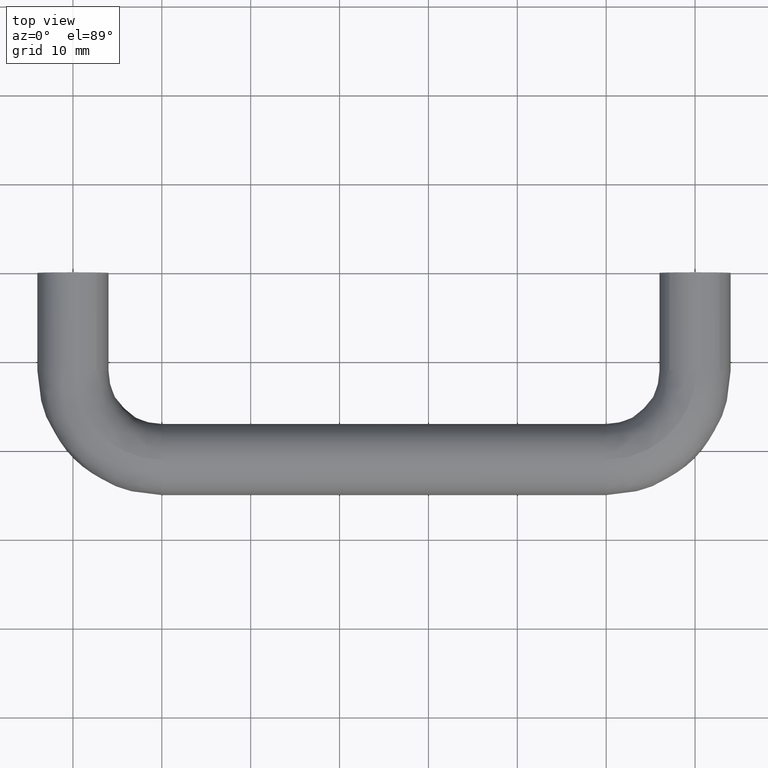
[diagram: clean part render]
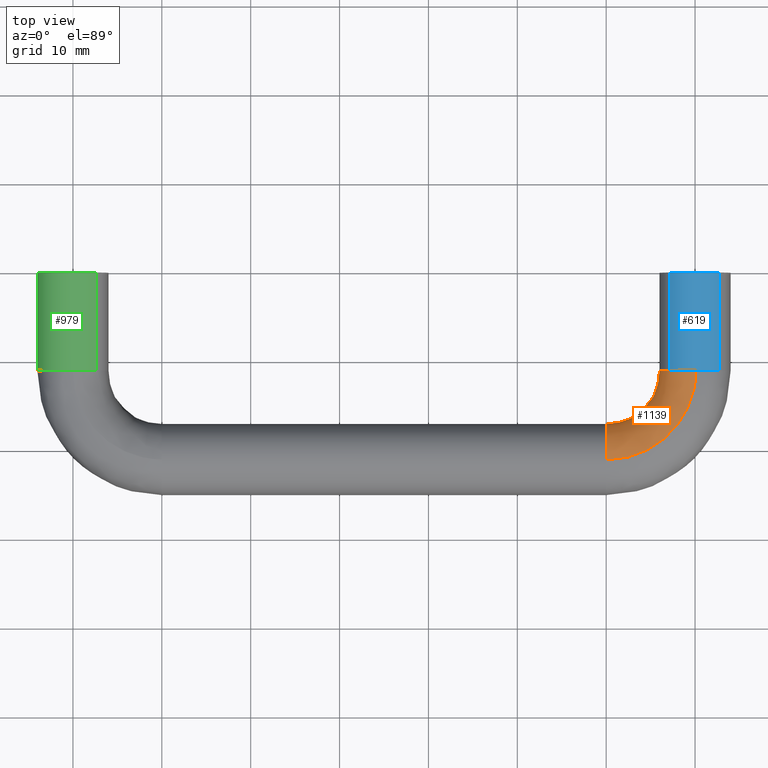
[diagram: same view with three faces highlighted in distinct colors, each labeled with its STEP entity id]
A machine part, top view with three faces highlighted in distinct colors.
Their STEP definitions:

[orange] entity #1139 — the highlighted face is a freeform B-spline surface patch.
#469=CARTESIAN_POINT('',(69.899479617930368,-11.000000000273801,-3.998736757125752));
#470=VERTEX_POINT('',#469);
#486=CARTESIAN_POINT('',(66.0,-11.0,0.0));
#487=VERTEX_POINT('',#486);
#488=CARTESIAN_POINT('',(69.899479617930368,-11.000000000273797,-3.998736757125752));
#489=CARTESIAN_POINT('',(65.999999999999986,-11.0,-3.900711504144390));
#490=CARTESIAN_POINT('',(66.0,-11.0,0.0));
#498=(BOUNDED_CURVE()B_SPLINE_CURVE(2,(#488,#489,#490),.UNSPECIFIED.,.F.,.U.)B_SPLINE_CURVE_WITH_KNOTS((3,3),(0.254420108256121,0.500000000000000),.UNSPECIFIED.)CURVE()GEOMETRIC_REPRESENTATION_ITEM()RATIONAL_B_SPLINE_CURVE((0.989826157622969,0.712285260125105,1.0))REPRESENTATION_ITEM(''));
#499=EDGE_CURVE('',#470,#487,#498,.T.);
#501=CARTESIAN_POINT('',(67.098502167182076,-11.000000000000011,2.753417935249319));
#502=VERTEX_POINT('',#501);
#503=CARTESIAN_POINT('',(66.0,-11.0,0.0));
#504=CARTESIAN_POINT('',(66.0,-11.0,1.595837596578552));
#505=CARTESIAN_POINT('',(67.098502167182076,-11.000000000000009,2.753417935249319));
#513=(BOUNDED_CURVE()B_SPLINE_CURVE(2,(#503,#504,#505),.UNSPECIFIED.,.F.,.U.)B_SPLINE_CURVE_WITH_KNOTS((3,3),(0.500000000000000,0.621049488427203),.UNSPECIFIED.)CURVE()GEOMETRIC_REPRESENTATION_ITEM()RATIONAL_B_SPLINE_CURVE((1.0,0.858181702795339,0.853699664200608))REPRESENTATION_ITEM(''));
#514=EDGE_CURVE('',#487,#502,#513,.T.);
#586=CARTESIAN_POINT('',(70.100520384564703,-11.000000000624340,3.998736757063030));
#587=VERTEX_POINT('',#586);
#588=CARTESIAN_POINT('',(67.098502167182076,-11.000000000000011,2.753417935249319));
#589=CARTESIAN_POINT('',(68.281463775938448,-11.0,4.000000000000001));
#590=CARTESIAN_POINT('',(70.0,-11.0,4.0));
#591=CARTESIAN_POINT('',(70.050268131286202,-11.000000000000004,4.000000000000001));
#592=CARTESIAN_POINT('',(70.100520384564703,-11.000000000624341,3.998736757063030));
#600=(BOUNDED_CURVE()B_SPLINE_CURVE(2,(#588,#589,#590,#591,#592),.UNSPECIFIED.,.F.,.U.)B_SPLINE_CURVE_WITH_KNOTS((3,2,3),(0.621049488427202,0.750000000000000,0.754420108474482),.UNSPECIFIED.)CURVE()GEOMETRIC_REPRESENTATION_ITEM()RATIONAL_B_SPLINE_CURVE((0.853699664200608,0.848925078391208,1.0,0.994821520805617,0.989826157129410))REPRESENTATION_ITEM(''));
#601=EDGE_CURVE('',#502,#587,#600,.T.);
#642=CARTESIAN_POINT('',(59.999995410626042,-18.085144373023830,-2.739273019229506));
#643=VERTEX_POINT('',#642);
#644=CARTESIAN_POINT('',(60.0,-17.0,0.0));
#645=VERTEX_POINT('',#644);
#646=CARTESIAN_POINT('',(59.999995410626028,-18.085144373023823,-2.739273019229505));
#647=CARTESIAN_POINT('',(59.999998084996584,-17.000000000000025,-1.584572790525597));
#648=CARTESIAN_POINT('',(60.0,-17.0,0.0));
#656=(BOUNDED_CURVE()B_SPLINE_CURVE(2,(#646,#647,#648),.UNSPECIFIED.,.F.,.U.)B_SPLINE_CURVE_WITH_KNOTS((3,3),(0.379684538877428,0.500000000000000),.UNSPECIFIED.)CURVE()GEOMETRIC_REPRESENTATION_ITEM()RATIONAL_B_SPLINE_CURVE((0.853759071032117,0.859041669275140,1.0))REPRESENTATION_ITEM(''));
#657=EDGE_CURVE('',#643,#645,#656,.T.);
#750=CARTESIAN_POINT('',(60.000000000247098,-21.100520383177319,3.998736757097906));
#751=VERTEX_POINT('',#750);
#765=CARTESIAN_POINT('',(60.0,-17.0,0.0));
#766=CARTESIAN_POINT('',(60.0,-17.000000000000004,4.000000000000000));
#767=CARTESIAN_POINT('',(60.0,-21.0,4.0));
#768=CARTESIAN_POINT('',(60.000000000000007,-21.050268129898161,4.0));
#769=CARTESIAN_POINT('',(60.000000000247098,-21.100520383177322,3.998736757097906));
#777=(BOUNDED_CURVE()B_SPLINE_CURVE(2,(#765,#766,#767,#768,#769),.UNSPECIFIED.,.F.,.U.)B_SPLINE_CURVE_WITH_KNOTS((3,2,3),(0.500000000000000,0.750000000000000,0.754420108353064),.UNSPECIFIED.)CURVE()GEOMETRIC_REPRESENTATION_ITEM()RATIONAL_B_SPLINE_CURVE((1.0,0.707106781186548,1.0,0.994821520947867,0.989826157403851))REPRESENTATION_ITEM(''));
#778=EDGE_CURVE('',#645,#751,#777,.T.);
#801=CARTESIAN_POINT('',(59.999990571734777,-20.899485182958191,-3.998736897012089));
#802=VERTEX_POINT('',#801);
#803=CARTESIAN_POINT('',(59.999990571734791,-20.899485182958191,-3.998736897012088));
#804=CARTESIAN_POINT('',(59.999992590856003,-19.229287516682106,-3.956753736536658));
#805=CARTESIAN_POINT('',(59.999995410626028,-18.085144373023823,-2.739273019229505));
#813=(BOUNDED_CURVE()B_SPLINE_CURVE(2,(#803,#804,#805),.UNSPECIFIED.,.F.,.U.)B_SPLINE_CURVE_WITH_KNOTS((3,3),(0.254419864726559,0.379684538877428),.UNSPECIFIED.)CURVE()GEOMETRIC_REPRESENTATION_ITEM()RATIONAL_B_SPLINE_CURVE((0.989826708070981,0.848259171506251,0.853759071032117))REPRESENTATION_ITEM(''));
#814=EDGE_CURVE('',#802,#643,#813,.T.);
#1082=CARTESIAN_POINT('',(59.295740786836014,-21.075938216528144,3.998736757133199));
#1083=CARTESIAN_POINT('',(70.881652070292617,-21.885737223720390,3.998736757133198));
#1084=CARTESIAN_POINT('',(70.076201847765233,-10.299522801433548,3.998736757133199));
#1085=CARTESIAN_POINT('',(59.574552877281384,-17.086933394386470,4.099257138906548));
#1086=CARTESIAN_POINT('',(66.573669860748879,-17.576137725903084,4.099257138906547));
#1087=CARTESIAN_POINT('',(66.087092655563566,-10.576837614489703,4.099257138906549));
#1088=CARTESIAN_POINT('',(59.581561665175386,-16.986657654328774,0.100520381773351));
#1089=CARTESIAN_POINT('',(66.465375656184477,-17.467802865890601,0.100520381773351));
#1090=CARTESIAN_POINT('',(65.986814291847736,-10.583808763773309,0.100520381773351));
#1091=CARTESIAN_POINT('',(59.588570453069366,-16.886381914271077,-3.898216375359846));
#1092=CARTESIAN_POINT('',(66.357081451620076,-17.359468005878096,-3.898216375359846));
#1093=CARTESIAN_POINT('',(65.886535928131877,-10.590779913056911,-3.898216375359846));
#1094=CARTESIAN_POINT('',(59.309758362623967,-20.875386736412768,-3.998736757133199));
#1095=CARTESIAN_POINT('',(70.665063661163856,-21.669067503695398,-3.998736757133198));
#1096=CARTESIAN_POINT('',(69.875645120333544,-10.313465100000757,-3.998736757133199));
#1104=(BOUNDED_SURFACE()B_SPLINE_SURFACE(2,2,((#1082,#1085,#1088,#1091,#1094),(#1083,#1086,#1089,#1092,#1095),(#1084,#1087,#1090,#1093,#1096)),.UNSPECIFIED.,.F.,.F.,.U.)B_SPLINE_SURFACE_WITH_KNOTS((3,3),(3,2,3),(0.0,18.406899486128331),(0.0,6.627416997969523,13.254833995939050),.UNSPECIFIED.)GEOMETRIC_REPRESENTATION_ITEM()RATIONAL_B_SPLINE_SURFACE(((0.916719569237488,0.648218623854239,0.916719569237488,0.648218623854239,0.916719569237488),(0.603246723527007,0.426559848934513,0.603246723527007,0.426559848934513,0.603246723527007),(0.921825358328560,0.651828961943844,0.921825358328560,0.651828961943844,0.921825358328560)))REPRESENTATION_ITEM('')SURFACE());
#1105=ORIENTED_EDGE('',*,*,#601,.F.);
#1106=ORIENTED_EDGE('',*,*,#514,.F.);
#1107=ORIENTED_EDGE('',*,*,#499,.F.);
#1108=CARTESIAN_POINT('',(59.999990571734777,-20.899485182958184,-3.998736897012089));
#1109=CARTESIAN_POINT('',(69.899479617528286,-20.899491828722166,-3.998736827068921));
#1110=CARTESIAN_POINT('',(69.899479617930368,-11.000000000273795,-3.998736757125752));
#1118=(BOUNDED_CURVE()B_SPLINE_CURVE(2,(#1108,#1109,#1110),.UNSPECIFIED.,.F.,.U.)B_SPLINE_CURVE_WITH_KNOTS((3,3),(-1.733068856363078,-0.253787686499701),.UNSPECIFIED.)CURVE()GEOMETRIC_REPRESENTATION_ITEM()RATIONAL_B_SPLINE_CURVE((0.889551518137046,0.630646669306107,0.894193516980253))REPRESENTATION_ITEM(''));
#1119=EDGE_CURVE('',#802,#470,#1118,.T.);
#1120=ORIENTED_EDGE('',*,*,#1119,.F.);
#1121=ORIENTED_EDGE('',*,*,#814,.T.);
#1122=ORIENTED_EDGE('',*,*,#657,.T.);
#1123=ORIENTED_EDGE('',*,*,#778,.T.);
#1124=CARTESIAN_POINT('',(60.000000000247098,-21.100520383177319,3.998736757097906));
#1125=CARTESIAN_POINT('',(70.100520380524642,-21.100520381279154,3.998736757133199));
#1126=CARTESIAN_POINT('',(70.100520384564703,-11.000000000624340,3.998736757063030));
#1134=(BOUNDED_CURVE()B_SPLINE_CURVE(2,(#1124,#1125,#1126),.UNSPECIFIED.,.F.,.U.)B_SPLINE_CURVE_WITH_KNOTS((3,3),(-1.733067862682674,-0.253787686571340),.UNSPECIFIED.)CURVE()GEOMETRIC_REPRESENTATION_ITEM()RATIONAL_B_SPLINE_CURVE((0.889551170307972,0.630646846351479,0.894193516954727))REPRESENTATION_ITEM(''));
#1135=EDGE_CURVE('',#751,#587,#1134,.T.);
#1136=ORIENTED_EDGE('',*,*,#1135,.T.);
#1137=EDGE_LOOP('',(#1105,#1106,#1107,#1120,#1121,#1122,#1123,#1136));
#1138=FACE_OUTER_BOUND('',#1137,.T.);
#1139=ADVANCED_FACE('',(#1138),#1104,.T.);

[blue] entity #619 — the highlighted face is a freeform B-spline surface patch.
#430=CARTESIAN_POINT('',(72.753417929688240,3.245321E-014,2.901497838095193));
#431=VERTEX_POINT('',#430);
#447=CARTESIAN_POINT('',(72.753417502998204,-11.000000000199600,2.901498242596409));
#448=VERTEX_POINT('',#447);
#449=CARTESIAN_POINT('',(72.753417502998204,-11.000000000199600,2.901498242596409));
#450=CARTESIAN_POINT('',(72.753417929688240,3.245321E-014,2.901497838095193));
#451=QUASI_UNIFORM_CURVE('',1,(#449,#450),.UNSPECIFIED.,.F.,.U.);
#452=EDGE_CURVE('',#448,#431,#451,.T.);
#501=CARTESIAN_POINT('',(67.098502167182076,-11.000000000000011,2.753417935249319));
#502=VERTEX_POINT('',#501);
#516=CARTESIAN_POINT('',(67.098502171384510,8.805456E-015,2.753417939677762));
#517=VERTEX_POINT('',#516);
#518=CARTESIAN_POINT('',(67.098502167182076,-11.000000000000011,2.753417935249319));
#519=CARTESIAN_POINT('',(67.098502171384510,8.805456E-015,2.753417939677762));
#520=QUASI_UNIFORM_CURVE('',1,(#518,#519),.UNSPECIFIED.,.F.,.U.);
#521=EDGE_CURVE('',#502,#517,#520,.T.);
#556=CARTESIAN_POINT('',(67.098502515950855,-11.275000000639951,2.753418302775015));
#557=CARTESIAN_POINT('',(69.851920818725887,-11.275000000639949,5.654915786824165));
#558=CARTESIAN_POINT('',(72.753418302775017,-11.275000000639951,2.901497484049150));
#559=CARTESIAN_POINT('',(67.098502515950855,0.281875000016008,2.753418302775015));
#560=CARTESIAN_POINT('',(69.851920818725887,0.281875000016008,5.654915786824165));
#561=CARTESIAN_POINT('',(72.753418302775017,0.281875000016008,2.901497484049150));
#569=(BOUNDED_SURFACE()B_SPLINE_SURFACE(2,1,((#556,#559),(#557,#560),(#558,#561)),.UNSPECIFIED.,.F.,.F.,.U.)B_SPLINE_SURFACE_WITH_KNOTS((3,3),(2,2),(0.0,6.627416997969515),(0.0,11.556875000655960),.UNSPECIFIED.)GEOMETRIC_REPRESENTATION_ITEM()RATIONAL_B_SPLINE_SURFACE(((1.0,1.0),(0.707106781186548,0.707106781186548),(1.0,1.0)))REPRESENTATION_ITEM('')SURFACE());
#570=CARTESIAN_POINT('',(67.098502171384524,8.805456E-015,2.753417939677761));
#571=CARTESIAN_POINT('',(68.281463783170381,8.673617E-015,4.0));
#572=CARTESIAN_POINT('',(70.0,8.673617E-015,4.0));
#573=CARTESIAN_POINT('',(71.595837587691776,8.673617E-015,4.000000000000001));
#574=CARTESIAN_POINT('',(72.753417929688240,3.245321E-014,2.901497838095193));
#582=(BOUNDED_CURVE()B_SPLINE_CURVE(2,(#570,#571,#572,#573,#574),.UNSPECIFIED.,.F.,.U.)B_SPLINE_CURVE_WITH_KNOTS((3,2,3),(0.621049488887871,0.750000000000000,0.871049487848710),.UNSPECIFIED.)CURVE()GEOMETRIC_REPRESENTATION_ITEM()RATIONAL_B_SPLINE_CURVE((0.853699664166494,0.848925078930915,1.0,0.858181703473085,0.853699664243447))REPRESENTATION_ITEM(''));
#583=EDGE_CURVE('',#517,#431,#582,.T.);
#584=ORIENTED_EDGE('',*,*,#583,.F.);
#585=ORIENTED_EDGE('',*,*,#521,.F.);
#586=CARTESIAN_POINT('',(70.100520384564703,-11.000000000624340,3.998736757063030));
#587=VERTEX_POINT('',#586);
#588=CARTESIAN_POINT('',(67.098502167182076,-11.000000000000011,2.753417935249319));
#589=CARTESIAN_POINT('',(68.281463775938448,-11.0,4.000000000000001));
#590=CARTESIAN_POINT('',(70.0,-11.0,4.0));
#591=CARTESIAN_POINT('',(70.050268131286202,-11.000000000000004,4.000000000000001));
#592=CARTESIAN_POINT('',(70.100520384564703,-11.000000000624341,3.998736757063030));
#600=(BOUNDED_CURVE()B_SPLINE_CURVE(2,(#588,#589,#590,#591,#592),.UNSPECIFIED.,.F.,.U.)B_SPLINE_CURVE_WITH_KNOTS((3,2,3),(0.621049488427202,0.750000000000000,0.754420108474482),.UNSPECIFIED.)CURVE()GEOMETRIC_REPRESENTATION_ITEM()RATIONAL_B_SPLINE_CURVE((0.853699664200608,0.848925078391208,1.0,0.994821520805617,0.989826157129410))REPRESENTATION_ITEM(''));
#601=EDGE_CURVE('',#502,#587,#600,.T.);
#602=ORIENTED_EDGE('',*,*,#601,.T.);
#603=CARTESIAN_POINT('',(70.100520384564703,-11.000000000624345,3.998736757063030));
#604=CARTESIAN_POINT('',(71.637893708832209,-11.000000000378193,3.960090211551882));
#605=CARTESIAN_POINT('',(72.753417502998204,-11.000000000199599,2.901498242596409));
#613=(BOUNDED_CURVE()B_SPLINE_CURVE(2,(#603,#604,#605),.UNSPECIFIED.,.F.,.U.)B_SPLINE_CURVE_WITH_KNOTS((3,3),(0.754420108474482,0.871049485096384),.UNSPECIFIED.)CURVE()GEOMETRIC_REPRESENTATION_ITEM()RATIONAL_B_SPLINE_CURVE((0.989826157129411,0.858018045423753,0.853699664447265))REPRESENTATION_ITEM(''));
#614=EDGE_CURVE('',#587,#448,#613,.T.);
#615=ORIENTED_EDGE('',*,*,#614,.T.);
#616=ORIENTED_EDGE('',*,*,#452,.T.);
#617=EDGE_LOOP('',(#584,#585,#602,#615,#616));
#618=FACE_OUTER_BOUND('',#617,.T.);
#619=ADVANCED_FACE('',(#618),#569,.T.);

[green] entity #979 — the highlighted face is a freeform B-spline surface patch.
#866=CARTESIAN_POINT('',(2.635878288639743,0.275000000010582,3.008678388840790));
#867=CARTESIAN_POINT('',(-0.205377497417183,0.275000000010581,5.497879117877503));
#868=CARTESIAN_POINT('',(-2.853001796616727,0.275000000010581,2.803637057199401));
#869=CARTESIAN_POINT('',(-5.656638853816128,0.275000000010580,-0.049364739417326));
#870=CARTESIAN_POINT('',(-2.803637057199401,0.275000000010581,-2.853001796616727));
#871=CARTESIAN_POINT('',(2.635878288639744,-11.281875000434061,3.008678388840790));
#872=CARTESIAN_POINT('',(-0.205377497417182,-11.281875000434061,5.497879117877503));
#873=CARTESIAN_POINT('',(-2.853001796616726,-11.281875000434059,2.803637057199401));
#874=CARTESIAN_POINT('',(-5.656638853816126,-11.281875000434061,-0.049364739417326));
#875=CARTESIAN_POINT('',(-2.803637057199400,-11.281875000434059,-2.853001796616727));
#883=(BOUNDED_SURFACE()B_SPLINE_SURFACE(2,1,((#866,#871),(#867,#872),(#868,#873),(#869,#874),(#870,#875)),.UNSPECIFIED.,.F.,.F.,.U.)B_SPLINE_SURFACE_WITH_KNOTS((3,2,3),(2,2),(0.0,6.362320318050738,12.989737316020260),(0.0,11.556875000444640),.UNSPECIFIED.)GEOMETRIC_REPRESENTATION_ITEM()RATIONAL_B_SPLINE_SURFACE(((0.977505800795127,0.977505800795127),(0.718822509939086,0.718822509939086),(1.0,1.0),(0.707106781186548,0.707106781186548),(1.0,1.0)))REPRESENTATION_ITEM('')SURFACE());
#884=CARTESIAN_POINT('',(2.635877884242773,-10.999999999999989,3.008678743129542));
#885=VERTEX_POINT('',#884);
#886=CARTESIAN_POINT('',(-0.050264159935794,-11.000000000048550,3.999684176810208));
#887=VERTEX_POINT('',#886);
#888=CARTESIAN_POINT('',(2.635877884242773,-10.999999999999993,3.008678743129542));
#889=CARTESIAN_POINT('',(1.504350502117724,-11.000000000000002,4.000000000000001));
#890=CARTESIAN_POINT('',(1.347067E-015,-11.0,4.0));
#891=CARTESIAN_POINT('',(-0.025133072370000,-10.999999999999998,4.0));
#892=CARTESIAN_POINT('',(-0.050264159935794,-11.000000000048548,3.999684176810208));
#900=(BOUNDED_CURVE()B_SPLINE_CURVE(2,(#888,#889,#890,#891,#892),.UNSPECIFIED.,.F.,.U.)B_SPLINE_CURVE_WITH_KNOTS((3,2,3),(0.634954760682260,0.750000000000000,0.752215704113659),.UNSPECIFIED.)CURVE()GEOMETRIC_REPRESENTATION_ITEM()RATIONAL_B_SPLINE_CURVE((0.854482187890157,0.865216118188253,1.0,0.997404141160849,0.994854295562566))REPRESENTATION_ITEM(''));
#901=EDGE_CURVE('',#885,#887,#900,.T.);
#902=ORIENTED_EDGE('',*,*,#901,.F.);
#903=CARTESIAN_POINT('',(2.635877889231022,1.419714E-016,3.008678738759379));
#904=VERTEX_POINT('',#903);
#905=CARTESIAN_POINT('',(2.635877889231022,1.419714E-016,3.008678738759379));
#906=CARTESIAN_POINT('',(2.635877884242773,-10.999999999999989,3.008678743129542));
#907=QUASI_UNIFORM_CURVE('',1,(#905,#906),.UNSPECIFIED.,.F.,.U.);
#908=EDGE_CURVE('',#904,#885,#907,.T.);
#909=ORIENTED_EDGE('',*,*,#908,.F.);
#910=CARTESIAN_POINT('',(-4.0,0.0,0.0));
#911=VERTEX_POINT('',#910);
#912=CARTESIAN_POINT('',(2.635877889231022,1.419714E-016,3.008678738759379));
#913=CARTESIAN_POINT('',(1.504350509687555,0.0,4.000000000000001));
#914=CARTESIAN_POINT('',(0.0,0.0,4.0));
#915=CARTESIAN_POINT('',(-4.000000000000000,0.0,4.000000000000000));
#916=CARTESIAN_POINT('',(-4.0,0.0,0.0));
#924=(BOUNDED_CURVE()B_SPLINE_CURVE(2,(#912,#913,#914,#915,#916),.UNSPECIFIED.,.F.,.U.)B_SPLINE_CURVE_WITH_KNOTS((3,2,3),(0.634954760181384,0.750000000000000,1.0),.UNSPECIFIED.)CURVE()GEOMETRIC_REPRESENTATION_ITEM()RATIONAL_B_SPLINE_CURVE((0.854482187796692,0.865216117601440,1.0,0.707106781186548,1.0))REPRESENTATION_ITEM(''));
#925=EDGE_CURVE('',#904,#911,#924,.T.);
#926=ORIENTED_EDGE('',*,*,#925,.T.);
#927=CARTESIAN_POINT('',(-2.803636887989971,-1.387779E-016,-2.853001962898352));
#928=VERTEX_POINT('',#927);
#929=CARTESIAN_POINT('',(-4.0,0.0,0.0));
#930=CARTESIAN_POINT('',(-4.000000000000001,0.0,-1.677339485986745));
#931=CARTESIAN_POINT('',(-2.803636887989971,-1.387779E-016,-2.853001962898351));
#939=(BOUNDED_CURVE()B_SPLINE_CURVE(2,(#929,#930,#931),.UNSPECIFIED.,.F.,.U.)B_SPLINE_CURVE_WITH_KNOTS((3,3),(0.0,0.126316775489584),.UNSPECIFIED.)CURVE()GEOMETRIC_REPRESENTATION_ITEM()RATIONAL_B_SPLINE_CURVE((1.0,0.852010692146878,0.853569641693290))REPRESENTATION_ITEM(''));
#940=EDGE_CURVE('',#911,#928,#939,.T.);
#941=ORIENTED_EDGE('',*,*,#940,.T.);
#942=CARTESIAN_POINT('',(-2.803636885876161,-11.0,-2.853001964975586));
#943=VERTEX_POINT('',#942);
#944=CARTESIAN_POINT('',(-2.803636887989971,-1.387779E-016,-2.853001962898352));
#945=CARTESIAN_POINT('',(-2.803636885876161,-11.0,-2.853001964975586));
#946=QUASI_UNIFORM_CURVE('',1,(#944,#945),.UNSPECIFIED.,.F.,.U.);
#947=EDGE_CURVE('',#928,#943,#946,.T.);
#948=ORIENTED_EDGE('',*,*,#947,.T.);
#949=CARTESIAN_POINT('',(-3.999999999999998,-11.0,0.0));
#950=VERTEX_POINT('',#949);
#951=CARTESIAN_POINT('',(-3.999999999999998,-11.0,0.0));
#952=CARTESIAN_POINT('',(-3.999999999999999,-11.0,-1.677339489471504));
#953=CARTESIAN_POINT('',(-2.803636885876160,-10.999999999999996,-2.853001964975585));
#961=(BOUNDED_CURVE()B_SPLINE_CURVE(2,(#951,#952,#953),.UNSPECIFIED.,.F.,.U.)B_SPLINE_CURVE_WITH_KNOTS((3,3),(0.0,0.126316775713177),.UNSPECIFIED.)CURVE()GEOMETRIC_REPRESENTATION_ITEM()RATIONAL_B_SPLINE_CURVE((1.0,0.852010691884923,0.853569641698809))REPRESENTATION_ITEM(''));
#962=EDGE_CURVE('',#950,#943,#961,.T.);
#963=ORIENTED_EDGE('',*,*,#962,.F.);
#964=CARTESIAN_POINT('',(-0.050264159935794,-11.000000000048553,3.999684176810208));
#965=CARTESIAN_POINT('',(-3.999999999999998,-11.0,3.950047718834405));
#966=CARTESIAN_POINT('',(-3.999999999999998,-11.0,0.0));
#974=(BOUNDED_CURVE()B_SPLINE_CURVE(2,(#964,#965,#966),.UNSPECIFIED.,.F.,.U.)B_SPLINE_CURVE_WITH_KNOTS((3,3),(0.752215704113658,1.0),.UNSPECIFIED.)CURVE()GEOMETRIC_REPRESENTATION_ITEM()RATIONAL_B_SPLINE_CURVE((0.994854295562567,0.709702640025698,1.0))REPRESENTATION_ITEM(''));
#975=EDGE_CURVE('',#887,#950,#974,.T.);
#976=ORIENTED_EDGE('',*,*,#975,.F.);
#977=EDGE_LOOP('',(#902,#909,#926,#941,#948,#963,#976));
#978=FACE_OUTER_BOUND('',#977,.T.);
#979=ADVANCED_FACE('',(#978),#883,.T.);